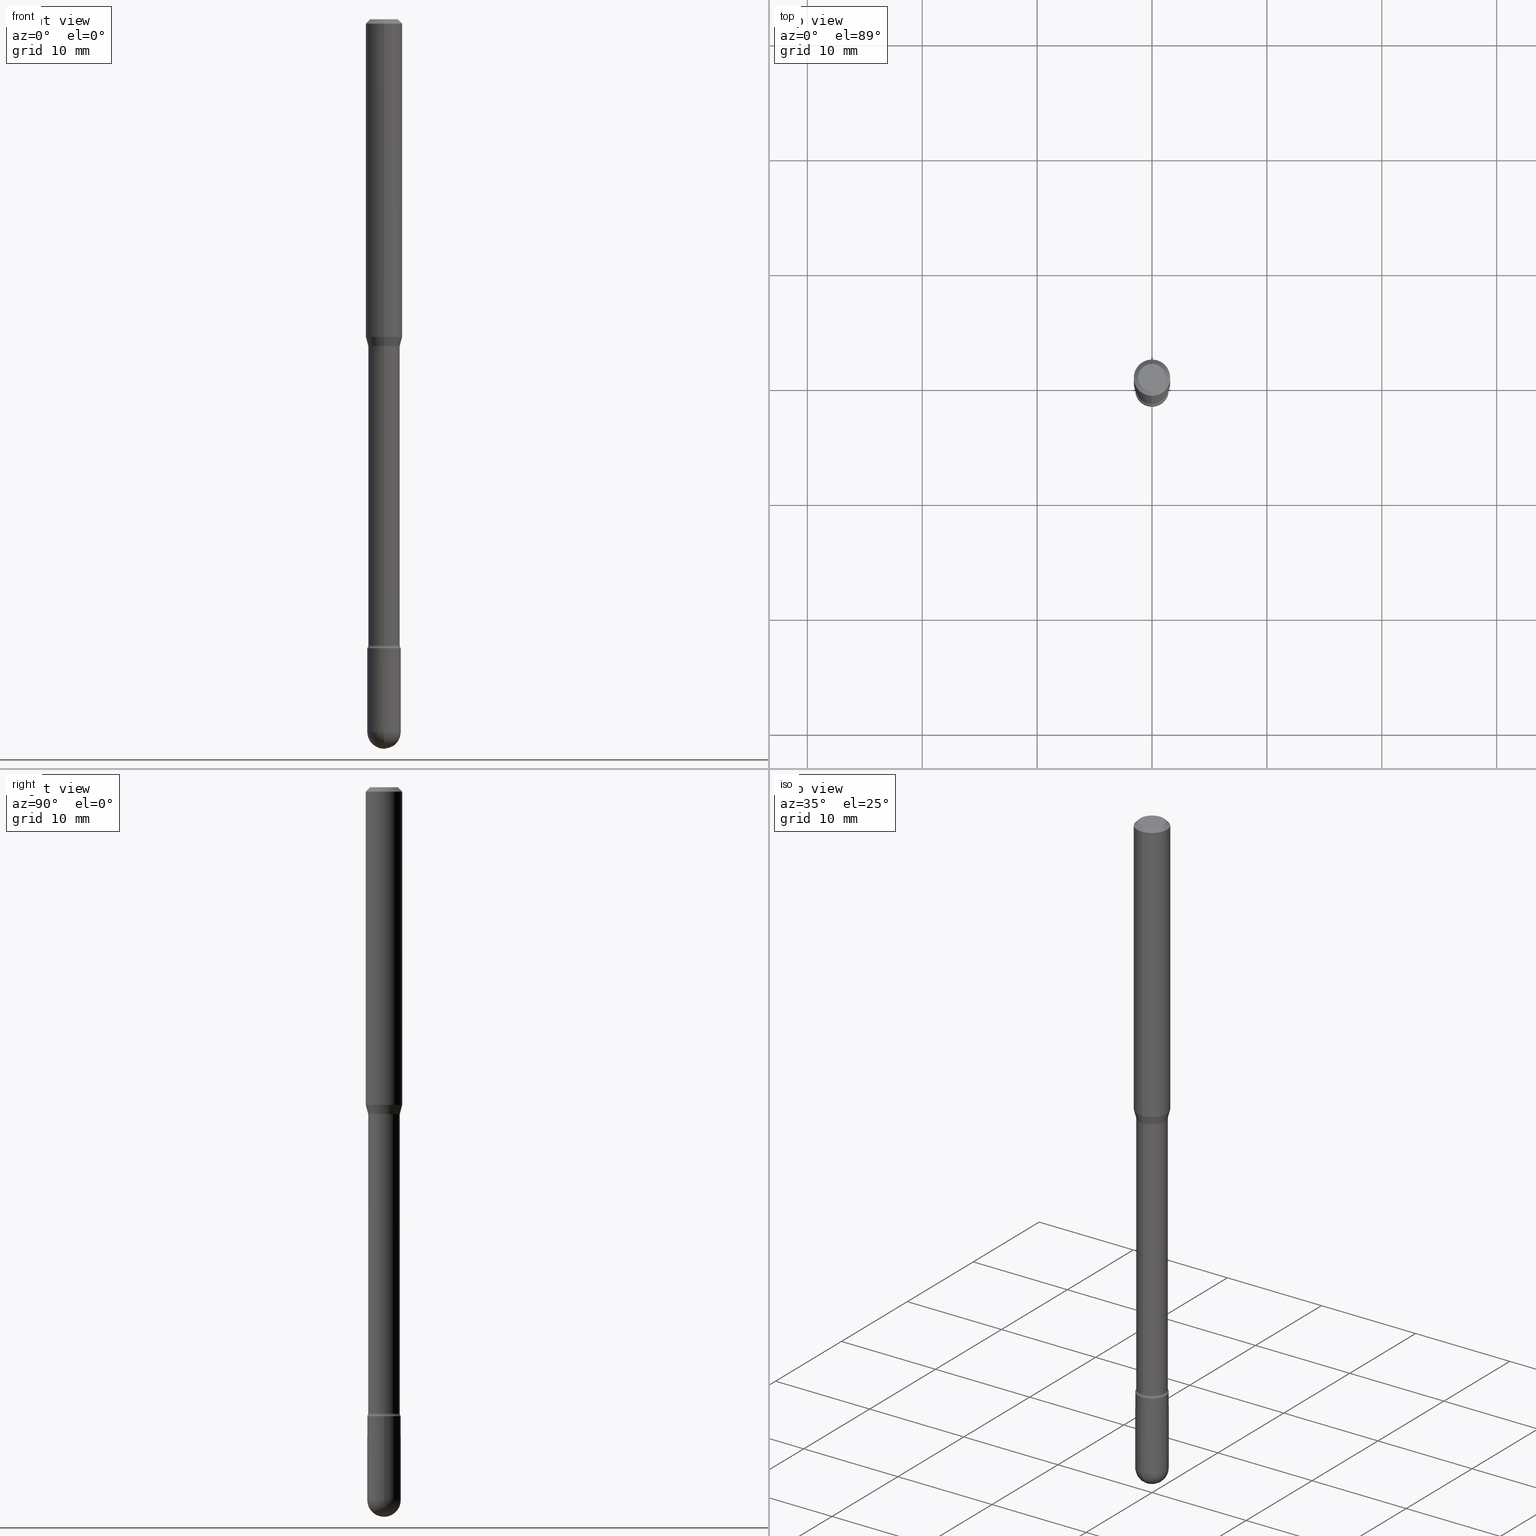
[diagram: canonical four-view strip — front | top / right | iso, engineering-drawing reading convention]
A machine part, canonical four-view strip (front | top / right | iso — engineering-drawing reading convention). The complete STEP part file that produces these views, byte-faithful:
ISO-10303-21;
HEADER;
FILE_DESCRIPTION (( 'STEP AP203' ),
    '1' );
FILE_NAME ('03749.STEP',
    '2024-04-09T20:20:05',
    ( '' ),
    ( '' ),
    'SwSTEP 2.0',
    'SolidWorks 2023',
    '' );
FILE_SCHEMA (( 'CONFIG_CONTROL_DESIGN' ));
ENDSEC;

DATA;
#1 = DIRECTION ( 'NONE',  ( -6.982962677686265922E-15, -1.000000000000000000, 3.491380473157220392E-15 ) ) ;
#2 = ORIENTED_EDGE ( 'NONE', *, *, #10, .T. ) ;
#3 = DIRECTION ( 'NONE',  ( -6.982962677686265922E-15, -1.000000000000000000, 3.491380473157220786E-15 ) ) ;
#4 = EDGE_CURVE ( 'NONE', #135, #178, #79, .T. ) ;
#5 = DIRECTION ( 'NONE',  ( -2.445539240317163819E-29, 3.491380473157220392E-15, 1.000000000000000000 ) ) ;
#6 = ORIENTED_EDGE ( 'NONE', *, *, #269, .F. ) ;
#7 = CARTESIAN_POINT ( 'NONE',  ( -0.05750000000000000250, -7.617480654603624176E-15, -2.155000000000000249 ) ) ;
#8 = AXIS2_PLACEMENT_3D ( 'NONE', #384, #342, #155 ) ;
#9 = CC_DESIGN_APPROVAL ( #535, ( #272 ) ) ;
#10 = EDGE_CURVE ( 'NONE', #262, #406, #162, .T. ) ;
#11 = SPHERICAL_SURFACE ( 'NONE', #492, 0.05750000000000007189 ) ;
#12 = CARTESIAN_POINT ( 'NONE',  ( -4.287811248607203282E-16, -0.06250000000000005551, -0.01499999999999986587 ) ) ;
#13 = ORIENTED_EDGE ( 'NONE', *, *, #190, .F. ) ;
#14 = ORIENTED_EDGE ( 'NONE', *, *, #117, .F. ) ;
#15 = EDGE_CURVE ( 'NONE', #406, #453, #366, .T. ) ;
#16 = CIRCLE ( 'NONE', #532, 0.05750000000000000250 ) ;
#17 = DIRECTION ( 'NONE',  ( -6.982962677686265922E-15, -1.000000000000000000, 2.503475335454092652E-15 ) ) ;
#18 = ORIENTED_EDGE ( 'NONE', *, *, #551, .T. ) ;
#19 = DIRECTION ( 'NONE',  ( -2.445468806185136597E-29, 3.491481338843145583E-15, 1.000000000000000000 ) ) ;
#20 = APPROVAL_PERSON_ORGANIZATION ( #365, #63, #461 ) ;
#21 = APPROVAL_ROLE ( '' ) ;
#22 = ORIENTED_EDGE ( 'NONE', *, *, #244, .F. ) ;
#23 = DIRECTION ( 'NONE',  ( -6.982962677686265922E-15, -1.000000000000000000, 5.054297860618422477E-15 ) ) ;
#24 = CONICAL_SURFACE ( 'NONE', #92, 0.05456111260566398613, 0.2617993877991491303 ) ;
#25 = DIRECTION ( 'NONE',  ( 1.000000000000000000, 0.000000000000000000, 0.000000000000000000 ) ) ;
#26 = ADVANCED_FACE ( 'NONE', ( #237 ), #30, .T. ) ;
#27 = ORIENTED_EDGE ( 'NONE', *, *, #509, .F. ) ;
#28 = DIRECTION ( 'NONE',  ( -6.982962677686265922E-15, -1.000000000000000000, 3.491380473157220392E-15 ) ) ;
#29 = SHAPE_DEFINITION_REPRESENTATION ( #561, #291 ) ;
#30 = CYLINDRICAL_SURFACE ( 'NONE', #478, 0.06250000000000000000 ) ;
#31 = LOCAL_TIME ( 16, 20, 5.000000000000000000, #418 ) ;
#32 = EDGE_LOOP ( 'NONE', ( #450, #168, #153, #319 ) ) ;
#33 = DIRECTION ( 'NONE',  ( 6.982962677686265922E-15, 1.000000000000000000, 0.000000000000000000 ) ) ;
#34 = DIRECTION ( 'NONE',  ( -6.982962677686265922E-15, -1.000000000000000000, 2.503475335454092652E-15 ) ) ;
#35 = DIRECTION ( 'NONE',  ( -2.445468806185136597E-29, 3.491481338843145583E-15, 1.000000000000000000 ) ) ;
#36 = AXIS2_PLACEMENT_3D ( 'NONE', #305, #475, #33 ) ;
#37 = ADVANCED_FACE ( 'NONE', ( #467 ), #239, .F. ) ;
#38 = CARTESIAN_POINT ( 'NONE',  ( 2.734339087425165935E-29, -3.903686327923591095E-15, -1.118092501787273374 ) ) ;
#39 = CC_DESIGN_PERSON_AND_ORGANIZATION_ASSIGNMENT ( #189, #99, ( #272 ) ) ;
#40 = DIRECTION ( 'NONE',  ( -6.982962677686265922E-15, -1.000000000000000000, 2.503475335454092652E-15 ) ) ;
#41 = CIRCLE ( 'NONE', #299, 0.05750000000000000250 ) ;
#42 = DIRECTION ( 'NONE',  ( 1.000000000000000000, -6.982962677686273810E-15, 0.000000000000000000 ) ) ;
#43 = LOCAL_TIME ( 16, 20, 5.000000000000000000, #553 ) ;
#44 = ORIENTED_EDGE ( 'NONE', *, *, #124, .T. ) ;
#45 = DIRECTION ( 'NONE',  ( 1.000000000000000000, -6.982962677686265922E-15, 4.876176775795935793E-29 ) ) ;
#46 = ORIENTED_EDGE ( 'NONE', *, *, #501, .T. ) ;
#47 = CARTESIAN_POINT ( 'NONE',  ( 2.661881841067542894E-29, -3.800242551229606105E-15, -1.088464170676043397 ) ) ;
#48 = ADVANCED_FACE ( 'NONE', ( #377 ), #158, .T. ) ;
#49 = FACE_OUTER_BOUND ( 'NONE', #477, .T. ) ;
#50 = ORIENTED_EDGE ( 'NONE', *, *, #236, .T. ) ;
#51 = DIRECTION ( 'NONE',  ( 1.839019923739592427E-15, 0.2588190451025238481, 0.9659258262890675351 ) ) ;
#52 = ORIENTED_EDGE ( 'NONE', *, *, #433, .F. ) ;
#53 = LINE ( 'NONE', #128, #338 ) ;
#54 = CC_DESIGN_PERSON_AND_ORGANIZATION_ASSIGNMENT ( #229, #371, ( #80 ) ) ;
#55 = CARTESIAN_POINT ( 'NONE',  ( 0.000000000000000000, 0.000000000000000000, 0.000000000000000000 ) ) ;
#56 = EDGE_CURVE ( 'NONE', #222, #73, #557, .T. ) ;
#57 = VERTEX_POINT ( 'NONE', #163 ) ;
#58 = CARTESIAN_POINT ( 'NONE',  ( 5.270137062883487967E-29, -7.523924919653812430E-15, -2.155000000000000249 ) ) ;
#59 = CIRCLE ( 'NONE', #214, 0.01499999999999999424 ) ;
#60 = DATE_TIME_ROLE ( 'classification_date' ) ;
#61 = ORIENTED_EDGE ( 'NONE', *, *, #363, .F. ) ;
#62 = CALENDAR_DATE ( 2024, 9, 4 ) ;
#63 = APPROVAL ( #502, 'UNSPECIFIED' ) ;
#64 = EDGE_LOOP ( 'NONE', ( #403, #357, #101, #413 ) ) ;
#65 = CARTESIAN_POINT ( 'NONE',  ( 4.906297590423765932E-16, 0.06904999999999608673, -1.121974787463811518 ) ) ;
#66 = DESIGN_CONTEXT ( 'detailed design', #143, 'design' ) ;
#67 = COORDINATED_UNIVERSAL_TIME_OFFSET ( 5, 0, .BEHIND. ) ;
#68 = VERTEX_POINT ( 'NONE', #430 ) ;
#69 = DIRECTION ( 'NONE',  ( -6.982962677686265922E-15, -1.000000000000000000, 3.491380473157220392E-15 ) ) ;
#70 = VECTOR ( 'NONE', #515, 39.37007874015748143 ) ;
#71 = DIRECTION ( 'NONE',  ( 0.000000000000000000, 0.000000000000000000, 1.000000000000000000 ) ) ;
#72 = DIRECTION ( 'NONE',  ( -6.982962677686265922E-15, -1.000000000000000000, 4.751039988981327336E-15 ) ) ;
#73 = VERTEX_POINT ( 'NONE', #249 ) ;
#74 = CIRCLE ( 'NONE', #426, 0.05750000000000007189 ) ;
#75 = CARTESIAN_POINT ( 'NONE',  ( 4.085620730621102811E-16, 0.05749999999999248768, -2.155000000000000249 ) ) ;
#76 = DIRECTION ( 'NONE',  ( -2.445468806185136597E-29, 3.491481338843145583E-15, 1.000000000000000000 ) ) ;
#77 = CARTESIAN_POINT ( 'NONE',  ( 2.024065035078073513E-45, -2.888698784081029136E-31, -8.275182319162675399E-17 ) ) ;
#78 = EDGE_CURVE ( 'NONE', #57, #307, #218, .T. ) ;
#79 = CIRCLE ( 'NONE', #87, 0.06250000000000000000 ) ;
#80 = PRODUCT_DEFINITION ( 'UNKNOWN', '', #272, #66 ) ;
#81 = CARTESIAN_POINT ( 'NONE',  ( 4.158846160097752610E-16, 0.05456111260566008647, -1.118092501787273596 ) ) ;
#82 = VECTOR ( 'NONE', #51, 39.37007874015748854 ) ;
#83 = CARTESIAN_POINT ( 'NONE',  ( 5.246580531039397913E-29, -7.490726510405960421E-15, -2.145429341715430649 ) ) ;
#84 = AXIS2_PLACEMENT_3D ( 'NONE', #323, #226, #187 ) ;
#85 = CARTESIAN_POINT ( 'NONE',  ( 2.024065035078073513E-45, -2.888698784081029136E-31, -8.275182319162675399E-17 ) ) ;
#86 = UNCERTAINTY_MEASURE_WITH_UNIT (LENGTH_MEASURE( 1.000000000000000082E-05 ), #318, 'distance_accuracy_value', 'NONE');
#87 = AXIS2_PLACEMENT_3D ( 'NONE', #503, #186, #364 ) ;
#88 = AXIS2_PLACEMENT_3D ( 'NONE', #431, #375, #40 ) ;
#89 = EDGE_LOOP ( 'NONE', ( #536, #490, #2, #171 ) ) ;
#90 = DIRECTION ( 'NONE',  ( 4.937700262164548042E-15, 0.7071067811865451302, -0.7071067811865499042 ) ) ;
#91 = ORIENTED_EDGE ( 'NONE', *, *, #264, .T. ) ;
#92 = AXIS2_PLACEMENT_3D ( 'NONE', #38, #562, #161 ) ;
#93 = VECTOR ( 'NONE', #491, 39.37007874015748143 ) ;
#94 = ORIENTED_EDGE ( 'NONE', *, *, #170, .F. ) ;
#95 = EDGE_CURVE ( 'NONE', #57, #416, #419, .T. ) ;
#96 = DIRECTION ( 'NONE',  ( 2.445539240317163819E-29, -3.491380473157220786E-15, -1.000000000000000000 ) ) ;
#97 = ORIENTED_EDGE ( 'NONE', *, *, #15, .F. ) ;
#98 = DIRECTION ( 'NONE',  ( -2.445539240317163819E-29, 3.491380473157220786E-15, 1.000000000000000000 ) ) ;
#99 = PERSON_AND_ORGANIZATION_ROLE ( 'design_supplier' ) ;
#100 = EDGE_LOOP ( 'NONE', ( #142, #420, #448, #283 ) ) ;
#101 = ORIENTED_EDGE ( 'NONE', *, *, #95, .T. ) ;
#102 = PERSON_AND_ORGANIZATION_ROLE ( 'design_owner' ) ;
#103 = ORIENTED_EDGE ( 'NONE', *, *, #124, .F. ) ;
#104 = FACE_OUTER_BOUND ( 'NONE', #233, .T. ) ;
#105 = EDGE_CURVE ( 'NONE', #68, #498, #408, .T. ) ;
#106 = PERSON_AND_ORGANIZATION ( #483, #370 ) ;
#107 = DIRECTION ( 'NONE',  ( -1.000000000000000000, 6.982962677686265922E-15, -4.883557194083112340E-29 ) ) ;
#108 = CARTESIAN_POINT ( 'NONE',  ( 4.015203539670130219E-16, 0.05749999999999248074, -2.155000000000000249 ) ) ;
#109 = AXIS2_PLACEMENT_3D ( 'NONE', #397, #320, #220 ) ;
#110 = ORIENTED_EDGE ( 'NONE', *, *, #56, .F. ) ;
#111 = MANIFOLD_SOLID_BREP ( 'Body-Move/Copy2[2]', #157 ) ;
#112 = CIRCLE ( 'NONE', #109, 0.05405000000000011878 ) ;
#113 = CARTESIAN_POINT ( 'NONE',  ( 2.734339087425165935E-29, -3.903686327923591095E-15, -1.118092501787273374 ) ) ;
#114 = DIRECTION ( 'NONE',  ( -2.445468806185136597E-29, 3.491481338843145583E-15, 1.000000000000000000 ) ) ;
#115 = LINE ( 'NONE', #428, #70 ) ;
#116 = DIRECTION ( 'NONE',  ( -2.445539240317163819E-29, 3.491380473157220786E-15, 1.000000000000000000 ) ) ;
#117 = EDGE_CURVE ( 'NONE', #311, #216, #446, .T. ) ;
#118 = AXIS2_PLACEMENT_3D ( 'NONE', #554, #146, #72 ) ;
#119 = DIRECTION ( 'NONE',  ( -2.445539240317163819E-29, 3.491380473157220786E-15, 1.000000000000000000 ) ) ;
#120 = FACE_OUTER_BOUND ( 'NONE', #334, .T. ) ;
#121 = CONICAL_SURFACE ( 'NONE', #204, 0.05456111260566398613, 0.2617993877991491303 ) ;
#122 = CARTESIAN_POINT ( 'NONE',  ( 0.05750000000000000250, -7.925662639173940169E-15, -2.155000000000000249 ) ) ;
#123 = DIRECTION ( 'NONE',  ( -1.807323732225322645E-15, -0.2588190451025170757, 0.9659258262890693114 ) ) ;
#124 = EDGE_CURVE ( 'NONE', #439, #183, #16, .T. ) ;
#125 = DIRECTION ( 'NONE',  ( 6.982962677686265922E-15, 1.000000000000000000, -3.483106191921935554E-15 ) ) ;
#126 = ORIENTED_EDGE ( 'NONE', *, *, #217, .F. ) ;
#127 = EDGE_LOOP ( 'NONE', ( #292, #175, #325, #275 ) ) ;
#128 = CARTESIAN_POINT ( 'NONE',  ( 3.840483486783346000E-16, 0.05405000000000007021, 2.893642843170980533E-16 ) ) ;
#129 = VECTOR ( 'NONE', #5, 39.37007874015748143 ) ;
#130 = LENGTH_MEASURE_WITH_UNIT ( LENGTH_MEASURE( 0.02539999999999999897 ), #529 );
#131 = ORIENTED_EDGE ( 'NONE', *, *, #472, .F. ) ;
#132 = DIRECTION ( 'NONE',  ( -2.445468806185136877E-29, 3.491481338843145188E-15, 1.000000000000000000 ) ) ;
#133 = EDGE_CURVE ( 'NONE', #221, #439, #392, .T. ) ;
#134 = ADVANCED_FACE ( 'NONE', ( #407 ), #147, .F. ) ;
#135 = VERTEX_POINT ( 'NONE', #350 ) ;
#136 = DIRECTION ( 'NONE',  ( -6.982962677686265922E-15, -1.000000000000000000, 4.370956789862821150E-15 ) ) ;
#137 = EDGE_LOOP ( 'NONE', ( #349, #421, #352, #219 ) ) ;
#138 = AXIS2_PLACEMENT_3D ( 'NONE', #47, #442, #524 ) ;
#139 = AXIS2_PLACEMENT_3D ( 'NONE', #393, #432, #45 ) ;
#140 = EDGE_LOOP ( 'NONE', ( #52, #241, #230, #540 ) ) ;
#141 = EDGE_CURVE ( 'NONE', #416, #312, #193, .T. ) ;
#142 = ORIENTED_EDGE ( 'NONE', *, *, #141, .T. ) ;
#143 = APPLICATION_CONTEXT ( 'configuration controlled 3d designs of mechanical parts and assemblies' ) ;
#144 = AXIS2_PLACEMENT_3D ( 'NONE', #463, #192, #369 ) ;
#145 = PERSON_AND_ORGANIZATION ( #483, #370 ) ;
#146 = DIRECTION ( 'NONE',  ( -2.445539240317163819E-29, 3.491380473157220786E-15, 1.000000000000000000 ) ) ;
#147 = TOROIDAL_SURFACE ( 'NONE', #547, 0.06905000000000000027, 0.01499999999999998904 ) ;
#148 = APPROVAL_DATE_TIME ( #321, #194 ) ;
#149 = AXIS2_PLACEMENT_3D ( 'NONE', #566, #443, #522 ) ;
#150 = ORIENTED_EDGE ( 'NONE', *, *, #181, .F. ) ;
#151 = DIRECTION ( 'NONE',  ( -2.445539240317163819E-29, 3.491380473157220786E-15, 1.000000000000000000 ) ) ;
#152 = PERSON_AND_ORGANIZATION ( #483, #370 ) ;
#153 = ORIENTED_EDGE ( 'NONE', *, *, #224, .F. ) ;
#154 = CARTESIAN_POINT ( 'NONE',  ( -3.774291327288910583E-16, -0.05405000000000760585, -2.145429341715430205 ) ) ;
#155 = DIRECTION ( 'NONE',  ( -6.982962677686265922E-15, -1.000000000000000000, 3.491380473157220786E-15 ) ) ;
#156 = CARTESIAN_POINT ( 'NONE',  ( 5.973057559107196227E-29, -8.527943170124383355E-15, -2.442499999999999893 ) ) ;
#157 = CLOSED_SHELL ( 'NONE', ( #134, #231, #367, #374, #26, #481, #351, #310, #516, #458, #255, #512, #527, #37 ) ) ;
#158 = CYLINDRICAL_SURFACE ( 'NONE', #258, 0.05750000000000000250 ) ;
#159 = CARTESIAN_POINT ( 'NONE',  ( -3.774291327289153158E-16, -0.05405000000000392824, -1.121974787463811074 ) ) ;
#160 = LINE ( 'NONE', #309, #129 ) ;
#161 = DIRECTION ( 'NONE',  ( -6.982962677686265922E-15, -1.000000000000000000, 2.503475335454092652E-15 ) ) ;
#162 = CIRCLE ( 'NONE', #435, 0.01500000000000001853 ) ;
#163 = CARTESIAN_POINT ( 'NONE',  ( -3.809982129783619050E-16, -0.05456111260566789273, -1.118092501787273374 ) ) ;
#164 = FACE_OUTER_BOUND ( 'NONE', #64, .T. ) ;
#165 = AXIS2_PLACEMENT_3D ( 'NONE', #256, #35, #298 ) ;
#166 = EDGE_CURVE ( 'NONE', #222, #183, #308, .T. ) ;
#167 = PLANE ( 'NONE',  #139 ) ;
#168 = ORIENTED_EDGE ( 'NONE', *, *, #470, .T. ) ;
#169 = APPLICATION_CONTEXT ( 'configuration controlled 3d designs of mechanical parts and assemblies' ) ;
#170 = EDGE_CURVE ( 'NONE', #528, #68, #53, .T. ) ;
#171 = ORIENTED_EDGE ( 'NONE', *, *, #15, .T. ) ;
#172 = CIRCLE ( 'NONE', #538, 0.04749999999999999362 ) ;
#173 = DIRECTION ( 'NONE',  ( -2.445539240317163819E-29, 3.491380473157220786E-15, 1.000000000000000000 ) ) ;
#174 = EDGE_CURVE ( 'NONE', #262, #528, #112, .T. ) ;
#175 = ORIENTED_EDGE ( 'NONE', *, *, #78, .F. ) ;
#176 = LINE ( 'NONE', #276, #355 ) ;
#177 = CONICAL_SURFACE ( 'NONE', #513, 0.06250000000000000000, 0.7853981633974483900 ) ;
#178 = VERTEX_POINT ( 'NONE', #260 ) ;
#179 = LINE ( 'NONE', #555, #281 ) ;
#180 = AXIS2_PLACEMENT_3D ( 'NONE', #429, #303, #434 ) ;
#181 = EDGE_CURVE ( 'NONE', #311, #178, #176, .T. ) ;
#182 = PERSON_AND_ORGANIZATION_ROLE ( 'classification_officer' ) ;
#183 = VERTEX_POINT ( 'NONE', #7 ) ;
#184 = DIRECTION ( 'NONE',  ( 1.000000000000000000, -6.982962677686273810E-15, 0.000000000000000000 ) ) ;
#185 = PERSON_AND_ORGANIZATION ( #483, #370 ) ;
#186 = DIRECTION ( 'NONE',  ( -2.445539240317163819E-29, 3.491380473157220786E-15, 1.000000000000000000 ) ) ;
#187 = DIRECTION ( 'NONE',  ( -6.982962677686265922E-15, -1.000000000000000000, 3.483106191921935554E-15 ) ) ;
#188 = CIRCLE ( 'NONE', #84, 0.06250000000000000000 ) ;
#189 = PERSON_AND_ORGANIZATION ( #483, #370 ) ;
#190 = EDGE_CURVE ( 'NONE', #216, #135, #313, .T. ) ;
#191 = ORIENTED_EDGE ( 'NONE', *, *, #269, .T. ) ;
#192 = DIRECTION ( 'NONE',  ( -1.000000000000000000, 6.982962677686265922E-15, -4.883557194083112340E-29 ) ) ;
#193 = CIRCLE ( 'NONE', #138, 0.06250000000000000000 ) ;
#194 = APPROVAL ( #496, 'UNSPECIFIED' ) ;
#195 = MECHANICAL_CONTEXT ( 'NONE', #169, 'mechanical' ) ;
#196 = AXIS2_PLACEMENT_3D ( 'NONE', #315, #402, #489 ) ;
#197 = CARTESIAN_POINT ( 'NONE',  ( -1.169113584055446105E-44, 1.669184350826100908E-30, 4.780733988912460139E-16 ) ) ;
#198 = SPHERICAL_SURFACE ( 'NONE', #265, 0.05750000000000007189 ) ;
#199 = DIRECTION ( 'NONE',  ( -6.982962677686265922E-15, -1.000000000000000000, 2.527148930309216366E-15 ) ) ;
#200 = AXIS2_PLACEMENT_3D ( 'NONE', #417, #19, #184 ) ;
#201 = DIRECTION ( 'NONE',  ( -6.982962677686265922E-15, -1.000000000000000000, 3.491380473157219603E-15 ) ) ;
#202 = FACE_OUTER_BOUND ( 'NONE', #506, .T. ) ;
#203 = DIRECTION ( 'NONE',  ( 1.000000000000000000, -6.982962677686273810E-15, 0.000000000000000000 ) ) ;
#204 = AXIS2_PLACEMENT_3D ( 'NONE', #113, #295, #34 ) ;
#205 = CARTESIAN_POINT ( 'NONE',  ( 2.734339087425165935E-29, -3.903686327923591095E-15, -1.118092501787273374 ) ) ;
#206 = CYLINDRICAL_SURFACE ( 'NONE', #341, 0.06250000000000000000 ) ;
#207 = AXIS2_PLACEMENT_3D ( 'NONE', #108, #238, #28 ) ;
#208 = DIRECTION ( 'NONE',  ( 1.000000000000000000, -6.982962677686273810E-15, 0.000000000000000000 ) ) ;
#209 = FACE_OUTER_BOUND ( 'NONE', #330, .T. ) ;
#210 = CC_DESIGN_PERSON_AND_ORGANIZATION_ASSIGNMENT ( #185, #102, ( #386 ) ) ;
#211 = LINE ( 'NONE', #440, #82 ) ;
#212 = CC_DESIGN_APPROVAL ( #63, ( #465 ) ) ;
#213 = ORIENTED_EDGE ( 'NONE', *, *, #217, .T. ) ;
#214 = AXIS2_PLACEMENT_3D ( 'NONE', #65, #504, #414 ) ;
#215 = CARTESIAN_POINT ( 'NONE',  ( 2.661881841067542894E-29, -3.800242551229606105E-15, -1.088464170676043397 ) ) ;
#216 = VERTEX_POINT ( 'NONE', #451 ) ;
#217 = EDGE_CURVE ( 'NONE', #453, #406, #41, .T. ) ;
#218 = CIRCLE ( 'NONE', #227, 0.05456111260566398613 ) ;
#219 = ORIENTED_EDGE ( 'NONE', *, *, #95, .F. ) ;
#220 = DIRECTION ( 'NONE',  ( -6.982962677686265922E-15, -1.000000000000000000, 5.054297860618422477E-15 ) ) ;
#221 = VERTEX_POINT ( 'NONE', #223 ) ;
#222 = VERTEX_POINT ( 'NONE', #485 ) ;
#223 = CARTESIAN_POINT ( 'NONE',  ( 0.05750000000000000250, -8.427563081632642561E-15, -2.442499999999999893 ) ) ;
#224 = EDGE_CURVE ( 'NONE', #221, #456, #514, .T. ) ;
#225 = VERTEX_POINT ( 'NONE', #457 ) ;
#226 = DIRECTION ( 'NONE',  ( -2.445539240317163819E-29, 3.491380473157220786E-15, 1.000000000000000000 ) ) ;
#227 = AXIS2_PLACEMENT_3D ( 'NONE', #205, #427, #17 ) ;
#228 = CC_DESIGN_APPROVAL ( #194, ( #80 ) ) ;
#229 = PERSON_AND_ORGANIZATION ( #483, #370 ) ;
#230 = ORIENTED_EDGE ( 'NONE', *, *, #105, .T. ) ;
#231 = ADVANCED_FACE ( 'NONE', ( #104 ), #454, .T. ) ;
#232 = DATE_AND_TIME ( #548, #286 ) ;
#233 = EDGE_LOOP ( 'NONE', ( #441, #480, #487, #27 ) ) ;
#234 = CC_DESIGN_PERSON_AND_ORGANIZATION_ASSIGNMENT ( #273, #182, ( #465 ) ) ;
#235 = APPROVAL_DATE_TIME ( #232, #63 ) ;
#236 = EDGE_CURVE ( 'NONE', #416, #135, #179, .T. ) ;
#237 = FACE_OUTER_BOUND ( 'NONE', #100, .T. ) ;
#238 = DIRECTION ( 'NONE',  ( -2.445539240317163819E-29, 3.491380473157220392E-15, 1.000000000000000000 ) ) ;
#239 = TOROIDAL_SURFACE ( 'NONE', #8, 0.06905000000000000027, 0.01499999999999998904 ) ;
#240 =( GEOMETRIC_REPRESENTATION_CONTEXT ( 3 ) GLOBAL_UNCERTAINTY_ASSIGNED_CONTEXT ( ( #86 ) ) GLOBAL_UNIT_ASSIGNED_CONTEXT ( ( #318, #270, #415 ) ) REPRESENTATION_CONTEXT ( 'NONE', 'WORKASPACE' ) );
#241 = ORIENTED_EDGE ( 'NONE', *, *, #248, .T. ) ;
#242 = DIRECTION ( 'NONE',  ( -2.445539240317163819E-29, 3.491380473157220786E-15, 1.000000000000000000 ) ) ;
#243 = DIRECTION ( 'NONE',  ( 2.445539240317163819E-29, -3.491380473157220392E-15, -1.000000000000000000 ) ) ;
#244 = EDGE_CURVE ( 'NONE', #178, #135, #188, .T. ) ;
#245 = DIRECTION ( 'NONE',  ( 1.000000000000000000, -6.982962677686265922E-15, 4.876176775795935232E-29 ) ) ;
#246 = DIRECTION ( 'NONE',  ( 7.105427357600998703E-15, 1.000000000000000000, 0.000000000000000000 ) ) ;
#247 = DIMENSIONAL_EXPONENTS ( 1.000000000000000000, 0.000000000000000000, 0.000000000000000000, 0.000000000000000000, 0.000000000000000000, 0.000000000000000000, 0.000000000000000000 ) ;
#248 = EDGE_CURVE ( 'NONE', #307, #68, #59, .T. ) ;
#249 = CARTESIAN_POINT ( 'NONE',  ( -4.085620730619980656E-16, -0.05750000000000856509, -2.442499999999999893 ) ) ;
#250 = CARTESIAN_POINT ( 'NONE',  ( 4.906297590424025270E-16, 0.06904999999999264504, -2.145429341715431093 ) ) ;
#251 = LOCAL_TIME ( 16, 20, 5.000000000000000000, #287 ) ;
#252 = CARTESIAN_POINT ( 'NONE',  ( -3.809982129783619050E-16, -0.05456111260566789273, -1.118092501787273374 ) ) ;
#253 = CARTESIAN_POINT ( 'NONE',  ( 5.973057559107196227E-29, -8.527943170124383355E-15, -2.442499999999999893 ) ) ;
#254 = DIRECTION ( 'NONE',  ( -7.105427357601000281E-15, -1.000000000000000000, 0.000000000000000000 ) ) ;
#255 = ADVANCED_FACE ( 'NONE', ( #410 ), #331, .F. ) ;
#256 = CARTESIAN_POINT ( 'NONE',  ( 0.000000000000000000, 0.000000000000000000, 0.000000000000000000 ) ) ;
#257 = CARTESIAN_POINT ( 'NONE',  ( 5.269985277328969904E-29, -7.524142285206980149E-15, -2.155000000000000249 ) ) ;
#258 = AXIS2_PLACEMENT_3D ( 'NONE', #304, #76, #245 ) ;
#259 = ORIENTED_EDGE ( 'NONE', *, *, #501, .F. ) ;
#260 = CARTESIAN_POINT ( 'NONE',  ( 4.440892098500893388E-16, 0.06249999999999993755, -0.01500000000000030129 ) ) ;
#261 = FACE_OUTER_BOUND ( 'NONE', #279, .T. ) ;
#262 = VERTEX_POINT ( 'NONE', #154 ) ;
#263 = DIRECTION ( 'NONE',  ( -2.445468806185136877E-29, 3.491481338843145188E-15, 1.000000000000000000 ) ) ;
#264 = EDGE_CURVE ( 'NONE', #528, #262, #376, .T. ) ;
#265 = AXIS2_PLACEMENT_3D ( 'NONE', #546, #373, #326 ) ;
#266 = DIRECTION ( 'NONE',  ( -1.000000000000000000, 6.982962677686266711E-15, -4.883557194083112901E-29 ) ) ;
#267 = EDGE_LOOP ( 'NONE', ( #316, #409, #110, #131 ) ) ;
#268 = DIRECTION ( 'NONE',  ( -2.445468806185136597E-29, 3.491481338843145583E-15, 1.000000000000000000 ) ) ;
#269 = EDGE_CURVE ( 'NONE', #183, #439, #405, .T. ) ;
#270 =( NAMED_UNIT ( * ) PLANE_ANGLE_UNIT ( ) SI_UNIT ( $, .RADIAN. ) );
#271 = ORIENTED_EDGE ( 'NONE', *, *, #133, .T. ) ;
#272 = PRODUCT_DEFINITION_FORMATION_WITH_SPECIFIED_SOURCE ( 'ANY', '', #386, .NOT_KNOWN. ) ;
#273 = PERSON_AND_ORGANIZATION ( #483, #370 ) ;
#274 = EDGE_CURVE ( 'NONE', #57, #498, #521, .T. ) ;
#275 = ORIENTED_EDGE ( 'NONE', *, *, #285, .T. ) ;
#276 = CARTESIAN_POINT ( 'NONE',  ( 4.364351673553919652E-16, 0.06249999999999995143, -0.01500000000000030129 ) ) ;
#277 = COORDINATED_UNIVERSAL_TIME_OFFSET ( 5, 0, .BEHIND. ) ;
#278 = ADVANCED_FACE ( 'NONE', ( #550 ), #198, .T. ) ;
#279 = EDGE_LOOP ( 'NONE', ( #44, #191 ) ) ;
#280 = AXIS2_PLACEMENT_3D ( 'NONE', #499, #151, #199 ) ;
#281 = VECTOR ( 'NONE', #537, 39.37007874015748143 ) ;
#282 = APPROVAL_ROLE ( '' ) ;
#283 = ORIENTED_EDGE ( 'NONE', *, *, #236, .F. ) ;
#284 = DIRECTION ( 'NONE',  ( -2.445539240317163819E-29, 3.491380473157220786E-15, 1.000000000000000000 ) ) ;
#285 = EDGE_CURVE ( 'NONE', #498, #68, #469, .T. ) ;
#286 = LOCAL_TIME ( 16, 20, 5.000000000000000000, #67 ) ;
#287 = COORDINATED_UNIVERSAL_TIME_OFFSET ( 5, 0, .BEHIND. ) ;
#288 = ORIENTED_EDGE ( 'NONE', *, *, #181, .T. ) ;
#289 = DATE_AND_TIME ( #62, #526 ) ;
#290 = EDGE_LOOP ( 'NONE', ( #61, #18, #50, #22 ) ) ;
#291 = ADVANCED_BREP_SHAPE_REPRESENTATION ( '03749', ( #488, #111, #302 ), #240 ) ;
#292 = ORIENTED_EDGE ( 'NONE', *, *, #248, .F. ) ;
#293 = CARTESIAN_POINT ( 'NONE',  ( -1.169113584055446105E-44, 1.669184350826100908E-30, 4.780733988912460139E-16 ) ) ;
#294 = CIRCLE ( 'NONE', #88, 0.05456111260566398613 ) ;
#295 = DIRECTION ( 'NONE',  ( -2.445539240317163819E-29, 3.491380473157220786E-15, 1.000000000000000000 ) ) ;
#296 = DIRECTION ( 'NONE',  ( 1.000000000000000000, -7.105427357601001070E-15, 4.926314273293688508E-29 ) ) ;
#297 = AXIS2_PLACEMENT_3D ( 'NONE', #250, #296, #246 ) ;
#298 = DIRECTION ( 'NONE',  ( 1.000000000000000000, -6.982962677686265922E-15, 4.876176775795935232E-29 ) ) ;
#299 = AXIS2_PLACEMENT_3D ( 'NONE', #58, #98, #401 ) ;
#300 = EDGE_CURVE ( 'NONE', #528, #453, #542, .T. ) ;
#301 = CYLINDRICAL_SURFACE ( 'NONE', #165, 0.05750000000000000250 ) ;
#302 = AXIS2_PLACEMENT_3D ( 'NONE', #55, #71, #25 ) ;
#303 = DIRECTION ( 'NONE',  ( -2.445539240317163819E-29, 3.491380473157220786E-15, 1.000000000000000000 ) ) ;
#304 = CARTESIAN_POINT ( 'NONE',  ( 0.000000000000000000, 0.000000000000000000, 0.000000000000000000 ) ) ;
#305 = CARTESIAN_POINT ( 'NONE',  ( 5.973057559107196227E-29, -8.527943170124383355E-15, -2.442499999999999893 ) ) ;
#306 = CARTESIAN_POINT ( 'NONE',  ( 3.668308860475765785E-31, -5.237070709735860540E-17, -0.01500000000000008271 ) ) ;
#307 = VERTEX_POINT ( 'NONE', #81 ) ;
#308 = LINE ( 'NONE', #317, #359 ) ;
#309 = CARTESIAN_POINT ( 'NONE',  ( -3.774291327289431725E-16, -0.05405000000000007021, 6.667825134653940731E-16 ) ) ;
#310 = ADVANCED_FACE ( 'NONE', ( #422 ), #206, .T. ) ;
#311 = VERTEX_POINT ( 'NONE', #343 ) ;
#312 = VERTEX_POINT ( 'NONE', #511 ) ;
#313 = LINE ( 'NONE', #12, #93 ) ;
#314 = AXIS2_PLACEMENT_3D ( 'NONE', #495, #284, #23 ) ;
#315 = CARTESIAN_POINT ( 'NONE',  ( 5.246580531039397913E-29, -7.490726510405960421E-15, -2.145429341715430649 ) ) ;
#316 = ORIENTED_EDGE ( 'NONE', *, *, #470, .F. ) ;
#317 = CARTESIAN_POINT ( 'NONE',  ( -0.05750000000000000250, 4.085620730620576246E-16, -2.828387676896570712E-30 ) ) ;
#318 =( CONVERSION_BASED_UNIT ( 'INCH', #130 ) LENGTH_UNIT ( ) NAMED_UNIT ( #247 ) );
#319 = ORIENTED_EDGE ( 'NONE', *, *, #544, .F. ) ;
#320 = DIRECTION ( 'NONE',  ( -2.445539240317163819E-29, 3.491380473157220786E-15, 1.000000000000000000 ) ) ;
#321 = DATE_AND_TIME ( #328, #251 ) ;
#322 = ORIENTED_EDGE ( 'NONE', *, *, #544, .T. ) ;
#323 = CARTESIAN_POINT ( 'NONE',  ( 3.668308860475765785E-31, -5.237070709735860540E-17, -0.01500000000000008271 ) ) ;
#324 = APPLICATION_PROTOCOL_DEFINITION ( 'international standard', 'config_control_design', 1994, #169 ) ;
#325 = ORIENTED_EDGE ( 'NONE', *, *, #274, .T. ) ;
#326 = DIRECTION ( 'NONE',  ( 6.982962677686266711E-15, 1.000000000000000000, -4.751039988981321814E-15 ) ) ;
#327 = CC_DESIGN_DATE_AND_TIME_ASSIGNMENT ( #362, #505, ( #80 ) ) ;
#328 = CALENDAR_DATE ( 2024, 9, 4 ) ;
#329 = AXIS2_PLACEMENT_3D ( 'NONE', #253, #423, #208 ) ;
#330 = EDGE_LOOP ( 'NONE', ( #368, #46 ) ) ;
#331 = PLANE ( 'NONE',  #207 ) ;
#332 = AXIS2_PLACEMENT_3D ( 'NONE', #156, #336, #203 ) ;
#333 = CALENDAR_DATE ( 2024, 9, 4 ) ;
#334 = EDGE_LOOP ( 'NONE', ( #259, #520, #444, #150 ) ) ;
#335 = ORIENTED_EDGE ( 'NONE', *, *, #105, .F. ) ;
#336 = DIRECTION ( 'NONE',  ( -2.445468806185136597E-29, 3.491481338843145583E-15, 1.000000000000000000 ) ) ;
#337 = PRODUCT_RELATED_PRODUCT_CATEGORY ( 'detail', '', ( #386 ) ) ;
#338 = VECTOR ( 'NONE', #404, 39.37007874015748143 ) ;
#339 = CARTESIAN_POINT ( 'NONE',  ( 4.015203539670203189E-16, 0.05749999999999150929, -2.442500000000000338 ) ) ;
#340 = DIRECTION ( 'NONE',  ( -6.982962677686265922E-15, -1.000000000000000000, 3.491380473157219603E-15 ) ) ;
#341 = AXIS2_PLACEMENT_3D ( 'NONE', #385, #556, #340 ) ;
#342 = DIRECTION ( 'NONE',  ( -2.445539240317163819E-29, 3.491380473157220786E-15, 1.000000000000000000 ) ) ;
#343 = CARTESIAN_POINT ( 'NONE',  ( 3.840629472727447874E-16, 0.04749999999999999362, -2.485923956665947374E-16 ) ) ;
#344 = DIRECTION ( 'NONE',  ( 2.445539240317163819E-29, -3.491380473157220786E-15, -1.000000000000000000 ) ) ;
#345 = CIRCLE ( 'NONE', #332, 0.05750000000000000250 ) ;
#346 = DIRECTION ( 'NONE',  ( -2.445539240317163819E-29, 3.491380473157220786E-15, 1.000000000000000000 ) ) ;
#347 = TOROIDAL_SURFACE ( 'NONE', #387, 0.06905000000000012517, 0.01500000000000001506 ) ;
#348 = CYLINDRICAL_SURFACE ( 'NONE', #517, 0.05405000000000007021 ) ;
#349 = ORIENTED_EDGE ( 'NONE', *, *, #78, .T. ) ;
#350 = CARTESIAN_POINT ( 'NONE',  ( -4.364351673553912750E-16, -0.06250000000000005551, -0.01499999999999986587 ) ) ;
#351 = ADVANCED_FACE ( 'NONE', ( #164 ), #24, .T. ) ;
#352 = ORIENTED_EDGE ( 'NONE', *, *, #141, .F. ) ;
#353 = APPROVAL_PERSON_ORGANIZATION ( #145, #194, #282 ) ;
#354 = EDGE_LOOP ( 'NONE', ( #497, #396, #103, #484, #464 ) ) ;
#355 = VECTOR ( 'NONE', #90, 39.37007874015748143 ) ;
#356 = DIRECTION ( 'NONE',  ( 6.982962677686266711E-15, 1.000000000000000000, -4.751039988981321814E-15 ) ) ;
#357 = ORIENTED_EDGE ( 'NONE', *, *, #433, .T. ) ;
#358 = AXIS2_PLACEMENT_3D ( 'NONE', #293, #242, #69 ) ;
#359 = VECTOR ( 'NONE', #132, 39.37007874015748143 ) ;
#360 = ORIENTED_EDGE ( 'NONE', *, *, #244, .T. ) ;
#361 = ORIENTED_EDGE ( 'NONE', *, *, #10, .F. ) ;
#362 = DATE_AND_TIME ( #412, #31 ) ;
#363 = EDGE_CURVE ( 'NONE', #312, #178, #115, .T. ) ;
#364 = DIRECTION ( 'NONE',  ( -6.982962677686265922E-15, -1.000000000000000000, 3.483106191921935554E-15 ) ) ;
#365 = PERSON_AND_ORGANIZATION ( #483, #370 ) ;
#366 = CIRCLE ( 'NONE', #118, 0.05750000000000000250 ) ;
#367 = ADVANCED_FACE ( 'NONE', ( #202 ), #347, .F. ) ;
#368 = ORIENTED_EDGE ( 'NONE', *, *, #117, .T. ) ;
#369 = DIRECTION ( 'NONE',  ( -6.982962677686266711E-15, -1.000000000000000000, 0.000000000000000000 ) ) ;
#370 = ORGANIZATION ( 'UNSPECIFIED', 'UNSPECIFIED', '' ) ;
#371 = PERSON_AND_ORGANIZATION_ROLE ( 'creator' ) ;
#372 = EDGE_LOOP ( 'NONE', ( #94, #91, #549, #335 ) ) ;
#373 = DIRECTION ( 'NONE',  ( -1.000000000000000000, 6.982962677686266711E-15, -4.883557194083112901E-29 ) ) ;
#374 = ADVANCED_FACE ( 'NONE', ( #120 ), #177, .T. ) ;
#375 = DIRECTION ( 'NONE',  ( -2.445539240317163819E-29, 3.491380473157220786E-15, 1.000000000000000000 ) ) ;
#376 = CIRCLE ( 'NONE', #314, 0.05405000000000011878 ) ;
#377 = FACE_OUTER_BOUND ( 'NONE', #354, .T. ) ;
#378 = CARTESIAN_POINT ( 'NONE',  ( 3.668308860475765785E-31, -5.237070709735860540E-17, -0.01500000000000008271 ) ) ;
#379 = CLOSED_SHELL ( 'NONE', ( #48, #519, #539, #278, #382 ) ) ;
#380 = CARTESIAN_POINT ( 'NONE',  ( 0.05750000000000000250, -4.015203539669603161E-16, 2.803801646082662941E-30 ) ) ;
#381 = CIRCLE ( 'NONE', #438, 0.06250000000000000000 ) ;
#382 = ADVANCED_FACE ( 'NONE', ( #564 ), #301, .T. ) ;
#383 = DIRECTION ( 'NONE',  ( -2.445539240317163819E-29, 3.491380473157220786E-15, 1.000000000000000000 ) ) ;
#384 = CARTESIAN_POINT ( 'NONE',  ( 2.743754344068948832E-29, -3.917354033082401123E-15, -1.121974787463811296 ) ) ;
#385 = CARTESIAN_POINT ( 'NONE',  ( -1.169113584055446105E-44, 1.669184350826100908E-30, 4.780733988912460139E-16 ) ) ;
#386 = PRODUCT ( '03749', '03749', '', ( #195 ) ) ;
#387 = AXIS2_PLACEMENT_3D ( 'NONE', #83, #116, #471 ) ;
#388 = PLANE ( 'NONE',  #391 ) ;
#389 = VECTOR ( 'NONE', #123, 39.37007874015748854 ) ;
#390 = FACE_OUTER_BOUND ( 'NONE', #372, .T. ) ;
#391 = AXIS2_PLACEMENT_3D ( 'NONE', #424, #243, #510 ) ;
#392 = LINE ( 'NONE', #380, #398 ) ;
#393 = CARTESIAN_POINT ( 'NONE',  ( 5.269985277328969904E-29, -7.524142285206980149E-15, -2.155000000000000249 ) ) ;
#394 = ORIENTED_EDGE ( 'NONE', *, *, #56, .T. ) ;
#395 = CARTESIAN_POINT ( 'NONE',  ( 2.743754344068948832E-29, -3.917354033082401123E-15, -1.121974787463811296 ) ) ;
#396 = ORIENTED_EDGE ( 'NONE', *, *, #166, .T. ) ;
#397 = CARTESIAN_POINT ( 'NONE',  ( 5.246731642492907639E-29, -7.490510110203804866E-15, -2.145429341715430649 ) ) ;
#398 = VECTOR ( 'NONE', #263, 39.37007874015748143 ) ;
#399 = FACE_OUTER_BOUND ( 'NONE', #267, .T. ) ;
#400 = ORIENTED_EDGE ( 'NONE', *, *, #300, .T. ) ;
#401 = DIRECTION ( 'NONE',  ( -6.982962677686265922E-15, -1.000000000000000000, 4.751039988981327336E-15 ) ) ;
#402 = DIRECTION ( 'NONE',  ( -2.445539240317163819E-29, 3.491380473157220786E-15, 1.000000000000000000 ) ) ;
#403 = ORIENTED_EDGE ( 'NONE', *, *, #533, .F. ) ;
#404 = DIRECTION ( 'NONE',  ( -2.445539240317163819E-29, 3.491380473157220392E-15, 1.000000000000000000 ) ) ;
#405 = CIRCLE ( 'NONE', #200, 0.05750000000000000250 ) ;
#406 = VERTEX_POINT ( 'NONE', #558 ) ;
#407 = FACE_OUTER_BOUND ( 'NONE', #140, .T. ) ;
#408 = CIRCLE ( 'NONE', #180, 0.05405000000000000776 ) ;
#409 = ORIENTED_EDGE ( 'NONE', *, *, #425, .T. ) ;
#410 = FACE_OUTER_BOUND ( 'NONE', #530, .T. ) ;
#411 = AXIS2_PLACEMENT_3D ( 'NONE', #306, #96, #125 ) ;
#412 = CALENDAR_DATE ( 2024, 9, 4 ) ;
#413 = ORIENTED_EDGE ( 'NONE', *, *, #551, .F. ) ;
#414 = DIRECTION ( 'NONE',  ( 7.105427357601001859E-15, 1.000000000000000000, 0.000000000000000000 ) ) ;
#415 =( NAMED_UNIT ( * ) SI_UNIT ( $, .STERADIAN. ) SOLID_ANGLE_UNIT ( ) );
#416 = VERTEX_POINT ( 'NONE', #468 ) ;
#417 = CARTESIAN_POINT ( 'NONE',  ( 5.269985277328969904E-29, -7.524142285206980149E-15, -2.155000000000000249 ) ) ;
#418 = COORDINATED_UNIVERSAL_TIME_OFFSET ( 5, 0, .BEHIND. ) ;
#419 = LINE ( 'NONE', #252, #389 ) ;
#420 = ORIENTED_EDGE ( 'NONE', *, *, #363, .T. ) ;
#421 = ORIENTED_EDGE ( 'NONE', *, *, #533, .T. ) ;
#422 = FACE_OUTER_BOUND ( 'NONE', #290, .T. ) ;
#423 = DIRECTION ( 'NONE',  ( -2.445468806185136597E-29, 3.491481338843145583E-15, 1.000000000000000000 ) ) ;
#424 = CARTESIAN_POINT ( 'NONE',  ( 3.316907271900976096E-16, 0.04749999999999999362, 3.182021537484162807E-17 ) ) ;
#425 = EDGE_CURVE ( 'NONE', #225, #73, #74, .T. ) ;
#426 = AXIS2_PLACEMENT_3D ( 'NONE', #518, #473, #254 ) ;
#427 = DIRECTION ( 'NONE',  ( -2.445539240317163819E-29, 3.491380473157220786E-15, 1.000000000000000000 ) ) ;
#428 = CARTESIAN_POINT ( 'NONE',  ( 4.440892098500625669E-16, 0.06250000000000000000, 2.598621193189197887E-16 ) ) ;
#429 = CARTESIAN_POINT ( 'NONE',  ( 2.743833369389259815E-29, -3.917240864325872967E-15, -1.121974787463811074 ) ) ;
#430 = CARTESIAN_POINT ( 'NONE',  ( 3.840483486783871086E-16, 0.05404999999999610116, -1.121974787463811296 ) ) ;
#431 = CARTESIAN_POINT ( 'NONE',  ( 2.734339087425165935E-29, -3.903686327923591095E-15, -1.118092501787273374 ) ) ;
#432 = DIRECTION ( 'NONE',  ( -2.438088387897960049E-29, 3.491481338843145188E-15, 1.000000000000000000 ) ) ;
#433 = EDGE_CURVE ( 'NONE', #307, #57, #294, .T. ) ;
#434 = DIRECTION ( 'NONE',  ( -6.982962677686265922E-15, -1.000000000000000000, 2.527148930309216366E-15 ) ) ;
#435 = AXIS2_PLACEMENT_3D ( 'NONE', #545, #107, #462 ) ;
#436 = CC_DESIGN_DATE_AND_TIME_ASSIGNMENT ( #289, #60, ( #465 ) ) ;
#437 = CARTESIAN_POINT ( 'NONE',  ( -1.169113584055446105E-44, 1.669184350826100908E-30, 4.780733988912460139E-16 ) ) ;
#438 = AXIS2_PLACEMENT_3D ( 'NONE', #215, #173, #136 ) ;
#439 = VERTEX_POINT ( 'NONE', #122 ) ;
#440 = CARTESIAN_POINT ( 'NONE',  ( 3.876800221694610846E-16, 0.05456111260566008647, -1.118092501787273596 ) ) ;
#441 = ORIENTED_EDGE ( 'NONE', *, *, #174, .T. ) ;
#442 = DIRECTION ( 'NONE',  ( -2.445539240317163819E-29, 3.491380473157220786E-15, 1.000000000000000000 ) ) ;
#443 = DIRECTION ( 'NONE',  ( -2.445468806185136597E-29, 3.491481338843145583E-15, 1.000000000000000000 ) ) ;
#444 = ORIENTED_EDGE ( 'NONE', *, *, #4, .T. ) ;
#445 = CARTESIAN_POINT ( 'NONE',  ( 5.973057559107196227E-29, -8.527943170124383355E-15, -2.442499999999999893 ) ) ;
#446 = CIRCLE ( 'NONE', #507, 0.04749999999999999362 ) ;
#447 = FACE_OUTER_BOUND ( 'NONE', #89, .T. ) ;
#448 = ORIENTED_EDGE ( 'NONE', *, *, #4, .F. ) ;
#449 = CC_DESIGN_SECURITY_CLASSIFICATION ( #465, ( #272 ) ) ;
#450 = ORIENTED_EDGE ( 'NONE', *, *, #425, .F. ) ;
#451 = CARTESIAN_POINT ( 'NONE',  ( -3.773273898774340269E-16, -0.04749999999999999362, 8.308874928334121709E-17 ) ) ;
#452 = APPROVAL_STATUS ( 'not_yet_approved' ) ;
#453 = VERTEX_POINT ( 'NONE', #75 ) ;
#454 = CYLINDRICAL_SURFACE ( 'NONE', #358, 0.05405000000000007021 ) ;
#455 = PERSON_AND_ORGANIZATION_ROLE ( 'creator' ) ;
#456 = VERTEX_POINT ( 'NONE', #339 ) ;
#457 = CARTESIAN_POINT ( 'NONE',  ( 6.116130618544232584E-29, -8.725182487560315771E-15, -2.500000000000000000 ) ) ;
#458 = ADVANCED_FACE ( 'NONE', ( #209 ), #388, .F. ) ;
#459 = APPROVAL_DATE_TIME ( #493, #535 ) ;
#460 = ORIENTED_EDGE ( 'NONE', *, *, #264, .F. ) ;
#461 = APPROVAL_ROLE ( '' ) ;
#462 = DIRECTION ( 'NONE',  ( -6.982962677686267499E-15, -1.000000000000000000, 0.000000000000000000 ) ) ;
#463 = CARTESIAN_POINT ( 'NONE',  ( -4.821735728942093263E-16, -0.06905000000000392768, -1.121974787463811074 ) ) ;
#464 = ORIENTED_EDGE ( 'NONE', *, *, #224, .T. ) ;
#465 = SECURITY_CLASSIFICATION ( '', '', #543 ) ;
#466 = DIRECTION ( 'NONE',  ( 6.982962677686265922E-15, 1.000000000000000000, -3.483106191921935554E-15 ) ) ;
#467 = FACE_OUTER_BOUND ( 'NONE', #127, .T. ) ;
#468 = CARTESIAN_POINT ( 'NONE',  ( -4.364351673553650454E-16, -0.06250000000000381639, -1.088464170676042952 ) ) ;
#469 = CIRCLE ( 'NONE', #280, 0.05405000000000000776 ) ;
#470 = EDGE_CURVE ( 'NONE', #225, #456, #552, .T. ) ;
#471 = DIRECTION ( 'NONE',  ( -6.982962677686265922E-15, -1.000000000000000000, 3.491380473157220786E-15 ) ) ;
#472 = EDGE_CURVE ( 'NONE', #456, #222, #345, .T. ) ;
#473 = DIRECTION ( 'NONE',  ( -1.000000000000000000, 7.105427357601001070E-15, -4.926315508542082329E-29 ) ) ;
#474 = DIRECTION ( 'NONE',  ( -2.445539240317163819E-29, 3.491380473157220786E-15, 1.000000000000000000 ) ) ;
#475 = DIRECTION ( 'NONE',  ( 1.000000000000000000, -6.982962677686265922E-15, 4.883557194083112340E-29 ) ) ;
#476 = DIRECTION ( 'NONE',  ( -6.982962677686266711E-15, -1.000000000000000000, 3.491380473157220786E-15 ) ) ;
#477 = EDGE_LOOP ( 'NONE', ( #13, #14, #288, #360 ) ) ;
#478 = AXIS2_PLACEMENT_3D ( 'NONE', #197, #119, #201 ) ;
#479 = CONICAL_SURFACE ( 'NONE', #411, 0.06250000000000000000, 0.7853981633974483900 ) ;
#480 = ORIENTED_EDGE ( 'NONE', *, *, #170, .T. ) ;
#481 = ADVANCED_FACE ( 'NONE', ( #508 ), #121, .T. ) ;
#482 = CARTESIAN_POINT ( 'NONE',  ( 3.963052108702489167E-16, 0.05404999999999263172, -2.145429341715431093 ) ) ;
#483 = PERSON ( 'UNSPECIFIED', 'UNSPECIFIED', 'UNSPECIFIED', ('UNSPECIFIED'), ('UNSPECIFIED'), ('UNSPECIFIED') ) ;
#484 = ORIENTED_EDGE ( 'NONE', *, *, #133, .F. ) ;
#485 = CARTESIAN_POINT ( 'NONE',  ( -0.05750000000000000250, -7.617480654603624176E-15, -2.442499999999999893 ) ) ;
#486 = CARTESIAN_POINT ( 'NONE',  ( 5.973057559107196227E-29, -8.527943170124383355E-15, -2.442499999999999893 ) ) ;
#487 = ORIENTED_EDGE ( 'NONE', *, *, #285, .F. ) ;
#488 = MANIFOLD_SOLID_BREP ( 'Body-Move/Copy2[1]', #379 ) ;
#489 = DIRECTION ( 'NONE',  ( -6.982962677686265922E-15, -1.000000000000000000, 3.491380473157220786E-15 ) ) ;
#490 = ORIENTED_EDGE ( 'NONE', *, *, #174, .F. ) ;
#491 = DIRECTION ( 'NONE',  ( -4.851104656540964275E-15, -0.7071067811865500152, -0.7071067811865450192 ) ) ;
#492 = AXIS2_PLACEMENT_3D ( 'NONE', #486, #266, #356 ) ;
#493 = DATE_AND_TIME ( #333, #43 ) ;
#494 = ORIENTED_EDGE ( 'NONE', *, *, #166, .F. ) ;
#495 = CARTESIAN_POINT ( 'NONE',  ( 5.246731642492907639E-29, -7.490510110203804866E-15, -2.145429341715430649 ) ) ;
#496 = APPROVAL_STATUS ( 'not_yet_approved' ) ;
#497 = ORIENTED_EDGE ( 'NONE', *, *, #472, .T. ) ;
#498 = VERTEX_POINT ( 'NONE', #159 ) ;
#499 = CARTESIAN_POINT ( 'NONE',  ( 2.743833369389259815E-29, -3.917240864325872967E-15, -1.121974787463811074 ) ) ;
#500 = CIRCLE ( 'NONE', #149, 0.05750000000000000250 ) ;
#501 = EDGE_CURVE ( 'NONE', #216, #311, #172, .T. ) ;
#502 = APPROVAL_STATUS ( 'not_yet_approved' ) ;
#503 = CARTESIAN_POINT ( 'NONE',  ( 3.668308860475765785E-31, -5.237070709735860540E-17, -0.01500000000000008271 ) ) ;
#504 = DIRECTION ( 'NONE',  ( 1.000000000000000000, -7.105427357601001070E-15, 4.926314273293688508E-29 ) ) ;
#505 = DATE_TIME_ROLE ( 'creation_date' ) ;
#506 = EDGE_LOOP ( 'NONE', ( #460, #400, #213, #361 ) ) ;
#507 = AXIS2_PLACEMENT_3D ( 'NONE', #85, #474, #476 ) ;
#508 = FACE_OUTER_BOUND ( 'NONE', #137, .T. ) ;
#509 = EDGE_CURVE ( 'NONE', #262, #498, #160, .T. ) ;
#510 = DIRECTION ( 'NONE',  ( 6.982962677686265922E-15, 1.000000000000000000, -3.491380473157220392E-15 ) ) ;
#511 = CARTESIAN_POINT ( 'NONE',  ( 4.440892098500890430E-16, 0.06249999999999618361, -1.088464170676043619 ) ) ;
#512 = ADVANCED_FACE ( 'NONE', ( #447 ), #565, .F. ) ;
#513 = AXIS2_PLACEMENT_3D ( 'NONE', #378, #344, #466 ) ;
#514 = CIRCLE ( 'NONE', #525, 0.05750000000000000250 ) ;
#515 = DIRECTION ( 'NONE',  ( -2.445539240317163819E-29, 3.491380473157220392E-15, 1.000000000000000000 ) ) ;
#516 = ADVANCED_FACE ( 'NONE', ( #49 ), #479, .T. ) ;
#517 = AXIS2_PLACEMENT_3D ( 'NONE', #437, #531, #1 ) ;
#518 = CARTESIAN_POINT ( 'NONE',  ( 5.973057559107196227E-29, -8.527943170124383355E-15, -2.442499999999999893 ) ) ;
#519 = ADVANCED_FACE ( 'NONE', ( #399 ), #11, .T. ) ;
#520 = ORIENTED_EDGE ( 'NONE', *, *, #190, .T. ) ;
#521 = CIRCLE ( 'NONE', #144, 0.01499999999999999424 ) ;
#522 = DIRECTION ( 'NONE',  ( 1.000000000000000000, -6.982962677686273810E-15, 0.000000000000000000 ) ) ;
#523 = EDGE_LOOP ( 'NONE', ( #494, #394, #322, #271, #6 ) ) ;
#524 = DIRECTION ( 'NONE',  ( -6.982962677686265922E-15, -1.000000000000000000, 4.370956789862821150E-15 ) ) ;
#525 = AXIS2_PLACEMENT_3D ( 'NONE', #445, #268, #541 ) ;
#526 = LOCAL_TIME ( 16, 20, 5.000000000000000000, #277 ) ;
#527 = ADVANCED_FACE ( 'NONE', ( #390 ), #348, .T. ) ;
#528 = VERTEX_POINT ( 'NONE', #482 ) ;
#529 =( LENGTH_UNIT ( ) NAMED_UNIT ( * ) SI_UNIT ( $, .METRE. ) );
#530 = EDGE_LOOP ( 'NONE', ( #97, #126 ) ) ;
#531 = DIRECTION ( 'NONE',  ( -2.445539240317163819E-29, 3.491380473157220786E-15, 1.000000000000000000 ) ) ;
#532 = AXIS2_PLACEMENT_3D ( 'NONE', #257, #114, #42 ) ;
#533 = EDGE_CURVE ( 'NONE', #307, #312, #211, .T. ) ;
#534 = APPLICATION_PROTOCOL_DEFINITION ( 'international standard', 'config_control_design', 1994, #143 ) ;
#535 = APPROVAL ( #452, 'UNSPECIFIED' ) ;
#536 = ORIENTED_EDGE ( 'NONE', *, *, #300, .F. ) ;
#537 = DIRECTION ( 'NONE',  ( -2.445539240317163819E-29, 3.491380473157220392E-15, 1.000000000000000000 ) ) ;
#538 = AXIS2_PLACEMENT_3D ( 'NONE', #77, #383, #560 ) ;
#539 = ADVANCED_FACE ( 'NONE', ( #261 ), #167, .T. ) ;
#540 = ORIENTED_EDGE ( 'NONE', *, *, #274, .F. ) ;
#541 = DIRECTION ( 'NONE',  ( 1.000000000000000000, -6.982962677686273810E-15, 0.000000000000000000 ) ) ;
#542 = CIRCLE ( 'NONE', #297, 0.01500000000000001853 ) ;
#543 = SECURITY_CLASSIFICATION_LEVEL ( 'unclassified' ) ;
#544 = EDGE_CURVE ( 'NONE', #73, #221, #500, .T. ) ;
#545 = CARTESIAN_POINT ( 'NONE',  ( -4.821735728941850689E-16, -0.06905000000000761917, -2.145429341715430205 ) ) ;
#546 = CARTESIAN_POINT ( 'NONE',  ( 5.973057559107196227E-29, -8.527943170124383355E-15, -2.442499999999999893 ) ) ;
#547 = AXIS2_PLACEMENT_3D ( 'NONE', #395, #346, #3 ) ;
#548 = CALENDAR_DATE ( 2024, 9, 4 ) ;
#549 = ORIENTED_EDGE ( 'NONE', *, *, #509, .T. ) ;
#550 = FACE_OUTER_BOUND ( 'NONE', #32, .T. ) ;
#551 = EDGE_CURVE ( 'NONE', #312, #416, #381, .T. ) ;
#552 = CIRCLE ( 'NONE', #36, 0.05750000000000007189 ) ;
#553 = COORDINATED_UNIVERSAL_TIME_OFFSET ( 5, 0, .BEHIND. ) ;
#554 = CARTESIAN_POINT ( 'NONE',  ( 5.270137062883487967E-29, -7.523924919653812430E-15, -2.155000000000000249 ) ) ;
#555 = CARTESIAN_POINT ( 'NONE',  ( -4.364351673553916201E-16, -0.06250000000000000000, 6.962846784635722884E-16 ) ) ;
#556 = DIRECTION ( 'NONE',  ( -2.445539240317163819E-29, 3.491380473157220786E-15, 1.000000000000000000 ) ) ;
#557 = CIRCLE ( 'NONE', #329, 0.05750000000000000250 ) ;
#558 = CARTESIAN_POINT ( 'NONE',  ( -4.015203539669076104E-16, -0.05750000000000753120, -2.154999999999999805 ) ) ;
#559 = APPROVAL_PERSON_ORGANIZATION ( #106, #535, #21 ) ;
#560 = DIRECTION ( 'NONE',  ( -6.982962677686266711E-15, -1.000000000000000000, 3.491380473157220786E-15 ) ) ;
#561 = PRODUCT_DEFINITION_SHAPE ( 'NONE', 'NONE',  #80 ) ;
#562 = DIRECTION ( 'NONE',  ( -2.445539240317163819E-29, 3.491380473157220786E-15, 1.000000000000000000 ) ) ;
#563 = CC_DESIGN_PERSON_AND_ORGANIZATION_ASSIGNMENT ( #152, #455, ( #272 ) ) ;
#564 = FACE_OUTER_BOUND ( 'NONE', #523, .T. ) ;
#565 = TOROIDAL_SURFACE ( 'NONE', #196, 0.06905000000000012517, 0.01500000000000001506 ) ;
#566 = CARTESIAN_POINT ( 'NONE',  ( 5.973057559107196227E-29, -8.527943170124383355E-15, -2.442499999999999893 ) ) ;
ENDSEC;
END-ISO-10303-21;
